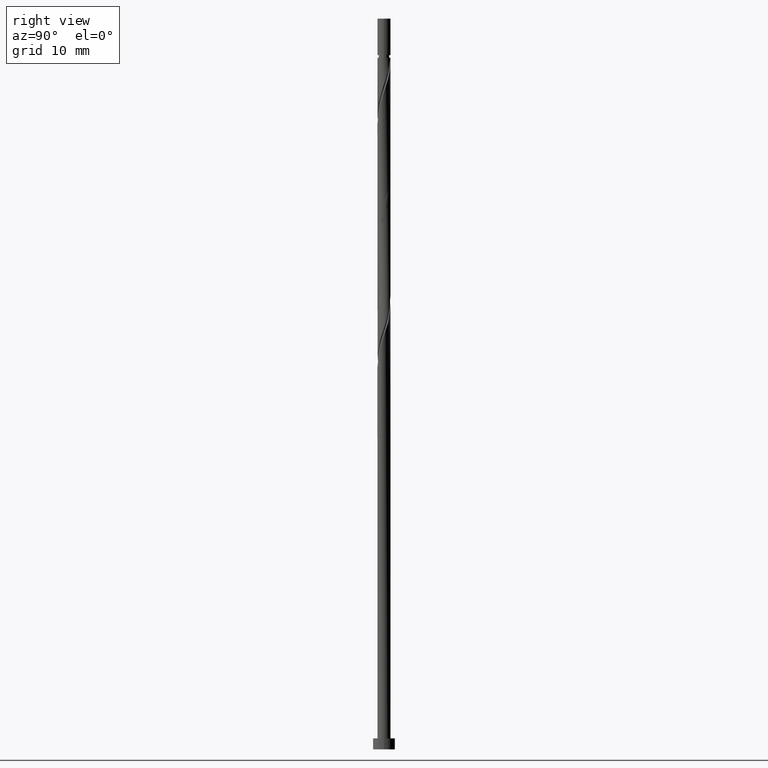
[diagram: clean part render]
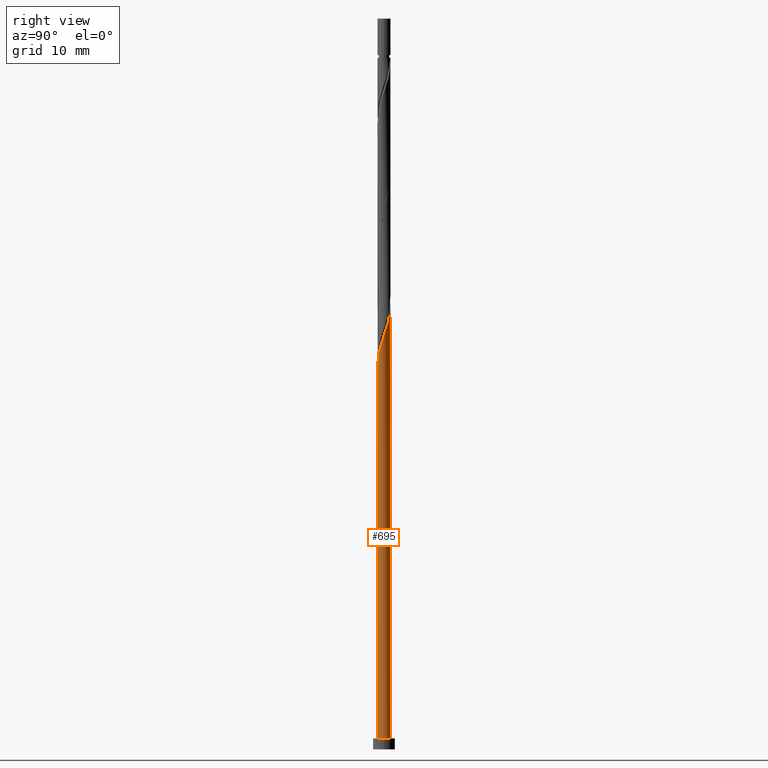
[diagram: same view with one face highlighted and labeled with its STEP entity id]
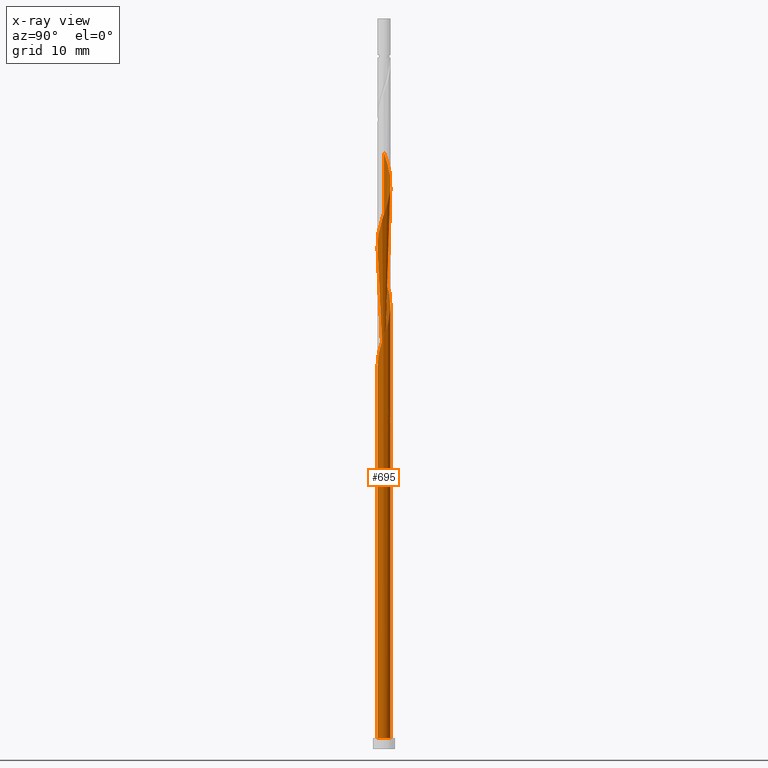
[diagram: x-ray of the same camera — body ghosted, the highlighted face saturated]
A machine part, right view. The second image highlights one B-rep face of the part: STEP entity #695.
The next image is the same camera in x-ray: the body ghosted, the highlighted face saturated — about 0% of this face is hidden behind the body in this view.
In plain terms, the highlighted cylindrical surface (bore or boss wall) has radius 0.9 mm, axis along (-0, -0, -1).
Its self-contained STEP definition (entity closure, byte-faithful):
#1 = CARTESIAN_POINT ( 'NONE',  ( -0.4699585898495194369, 0.7675538572808121573, 62.23155601939069470 ) ) ;
#34 = CARTESIAN_POINT ( 'NONE',  ( -0.9000000000000012434, 8.720621721749205951E-16, 48.27477520514266729 ) ) ;
#44 = CARTESIAN_POINT ( 'NONE',  ( 0.6052990440349810264, -0.6846874780746388112, 54.36118564902031380 ) ) ;
#45 = ORIENTED_EDGE ( 'NONE', *, *, #1302, .T. ) ;
#53 = LINE ( 'NONE', #1092, #716 ) ;
#72 = CARTESIAN_POINT ( 'NONE',  ( -0.6742855367982802939, -0.5961031914565271261, 50.19451898235366372 ) ) ;
#73 = VERTEX_POINT ( 'NONE', #767 ) ;
#81 = CARTESIAN_POINT ( 'NONE',  ( 0.1790977386791917370, 0.8820000000000014495, 44.63896342679809948 ) ) ;
#82 = EDGE_CURVE ( 'NONE', #1060, #73, #53, .T. ) ;
#84 = CARTESIAN_POINT ( 'NONE',  ( -0.9000000000000010214, -2.838403643909805734E-16, 81.60810853847603141 ) ) ;
#89 = CARTESIAN_POINT ( 'NONE',  ( 0.8533832754774717255, -0.2858968085434743234, 72.41674120457587094 ) ) ;
#93 = CARTESIAN_POINT ( 'NONE',  ( -0.2903072276482472902, -0.8665480880580486156, 68.25007453790921375 ) ) ;
#97 = CARTESIAN_POINT ( 'NONE',  ( -0.6742855367982802939, -0.5961031914565271261, 66.86118564902032801 ) ) ;
#102 = CARTESIAN_POINT ( 'NONE',  ( 0.2903072276482477898, 0.8665480880580483936, 76.58340787124255655 ) ) ;
#130 = CARTESIAN_POINT ( 'NONE',  ( -0.1790977386791912929, 0.8820000000000012275, 44.63896342679811369 ) ) ;
#161 = CARTESIAN_POINT ( 'NONE',  ( 0.000000000000000000, 0.000000000000000000, 100.0000000000000000 ) ) ;
#174 = CARTESIAN_POINT ( 'NONE',  ( -0.8956062716832288162, 0.1818606099834100820, 48.80563009346477088 ) ) ;
#187 = CARTESIAN_POINT ( 'NONE',  ( 0.4699585898495194369, -0.7675538572808121573, 70.56488935272405172 ) ) ;
#193 = CARTESIAN_POINT ( 'NONE',  ( 0.9037945965221287903, -0.1354223121914317485, 72.87970416753884706 ) ) ;
#196 = CARTESIAN_POINT ( 'NONE',  ( 0.9037945965221287903, -0.1354223121914317485, 56.21303750087217566 ) ) ;
#204 = CARTESIAN_POINT ( 'NONE',  ( 0.4297418442531592553, 0.7907730061768012408, 76.12044490827958043 ) ) ;
#209 = CARTESIAN_POINT ( 'NONE',  ( -0.7041354992338979546, 0.5605293914850775217, 79.82414861198327571 ) ) ;
#212 = CARTESIAN_POINT ( 'NONE',  ( 0.000000000000000000, 0.000000000000000000, 1.500000000000000000 ) ) ;
#213 = ORIENTED_EDGE ( 'NONE', *, *, #1009, .T. ) ;
#214 = CARTESIAN_POINT ( 'NONE',  ( -0.9000000000000000222, 0.000000000000000000, 100.0000000000000000 ) ) ;
#246 =( BOUNDED_CURVE ( )  B_SPLINE_CURVE ( 2, ( #130, #552, #870, #342, #758, #1184, #1204, #260, #34 ),
 .UNSPECIFIED., .F., .T. ) 
 B_SPLINE_CURVE_WITH_KNOTS ( ( 3, 2, 2, 2, 3 ),
 ( 0.000000000000000000, 0.01388888888888883955, 0.02777777777777779011, 0.04166666666666662966, 0.05452480538552909040 ),
 .UNSPECIFIED. ) 
 CURVE ( )  GEOMETRIC_REPRESENTATION_ITEM ( )  RATIONAL_B_SPLINE_CURVE ( ( 0.9090909090909128354, 0.8952797754656471874, 0.9090909090909128354, 0.8952797754656471874, 0.9090909090909128354, 0.8952797754656471874, 0.9090909090909128354, 0.8963047551055872697, 0.9071930855141251415 ) ) 
 REPRESENTATION_ITEM ( '' )  );
#249 = DIRECTION ( 'NONE',  ( 0.000000000000000000, 0.000000000000000000, 1.000000000000000000 ) ) ;
#258 = CARTESIAN_POINT ( 'NONE',  ( -0.6742855367982805159, 0.5961031914565275702, 47.41674120457588515 ) ) ;
#260 = CARTESIAN_POINT ( 'NONE',  ( -0.9000000000000015765, 0.1467489346384113491, 47.84485569277705963 ) ) ;
#266 = CARTESIAN_POINT ( 'NONE',  ( -0.1333649429769610817, 0.8900639257855329500, 45.56488935272403751 ) ) ;
#276 = CARTESIAN_POINT ( 'NONE',  ( -0.7793946127384899780, -0.4772084586175001086, 49.73155601939070181 ) ) ;
#280 = FACE_OUTER_BOUND ( 'NONE', #1056, .T. ) ;
#292 = CARTESIAN_POINT ( 'NONE',  ( 0.8956062716832284831, 0.1818606099834098599, 57.13896342679811369 ) ) ;
#298 = CARTESIAN_POINT ( 'NONE',  ( 0.9000000000000000222, 0.000000000000000000, 1.500000000000000000 ) ) ;
#302 = CARTESIAN_POINT ( 'NONE',  ( 0.7041354992338979546, -0.5605293914850775217, 54.82414861198327571 ) ) ;
#306 = CARTESIAN_POINT ( 'NONE',  ( 0.2903072276482477898, 0.8665480880580483936, 59.91674120457589225 ) ) ;
#312 = CARTESIAN_POINT ( 'NONE',  ( -0.6052990440349811374, 0.6846874780746385891, 79.36118564902034223 ) ) ;
#317 = EDGE_CURVE ( 'NONE', #993, #443, #246, .T. ) ;
#325 = CARTESIAN_POINT ( 'NONE',  ( -0.1790977386791912929, 0.8820000000000012275, 44.63896342679809948 ) ) ;
#336 =( BOUNDED_CURVE ( )  B_SPLINE_CURVE ( 2, ( #779, #1211, #1334, #174, #919, #769, #258, #682, #375, #1011, #266, #913, #81 ),
 .UNSPECIFIED., .F., .T. ) 
 B_SPLINE_CURVE_WITH_KNOTS ( ( 3, 2, 2, 2, 2, 2, 3 ),
 ( 0.9295248053855288406, 0.9305555555555555802, 0.9444444444444444198, 0.9583333333333333703, 0.9722222222222222099, 0.9861111111111111605, 1.000000000000000000 ),
 .UNSPECIFIED. ) 
 CURVE ( )  GEOMETRIC_REPRESENTATION_ITEM ( )  RATIONAL_B_SPLINE_CURVE ( ( 0.9071930855141256966, 0.9080659294509735302, 0.9090909090909138346, 0.8952797754656482976, 0.9090909090909138346, 0.8952797754656482976, 0.9090909090909138346, 0.8952797754656482976, 0.9090909090909138346, 0.8952797754656482976, 0.9090909090909138346, 0.8952797754656482976, 0.9090909090909138346 ) ) 
 REPRESENTATION_ITEM ( '' )  );
#337 = ORIENTED_EDGE ( 'NONE', *, *, #82, .F. ) ;
#342 = CARTESIAN_POINT ( 'NONE',  ( -0.6052990440349811374, 0.6846874780746385891, 46.02785231568699231 ) ) ;
#344 = CARTESIAN_POINT ( 'NONE',  ( 0.1790977386791913761, -0.8820000000000012275, 52.97229676013144228 ) ) ;
#372 = CARTESIAN_POINT ( 'NONE',  ( -0.9000000000000010214, -0.01161150689881867634, 48.30879257907503899 ) ) ;
#375 = CARTESIAN_POINT ( 'NONE',  ( -0.4297418442531589777, 0.7907730061768017960, 46.49081527864996133 ) ) ;
#381 = ORIENTED_EDGE ( 'NONE', *, *, #868, .F. ) ;
#391 = EDGE_CURVE ( 'NONE', #887, #1311, #1133, .T. ) ;
#392 = CARTESIAN_POINT ( 'NONE',  ( -0.8956062716832284831, -0.1818606099834099432, 65.47229676013145649 ) ) ;
#396 = CARTESIAN_POINT ( 'NONE',  ( -0.1790977386791912651, 0.8820000000000012275, 77.97229676013144228 ) ) ;
#401 = CARTESIAN_POINT ( 'NONE',  ( 0.8997004341026783036, 0.02321914889598944085, 73.34266713050180897 ) ) ;
#405 = CARTESIAN_POINT ( 'NONE',  ( -0.3346181356640578475, 0.8504202364869859476, 61.76859305642774700 ) ) ;
#411 = CARTESIAN_POINT ( 'NONE',  ( 0.4297418442531592553, 0.7907730061768012408, 59.45377824161291613 ) ) ;
#419 = AXIS2_PLACEMENT_3D ( 'NONE', #161, #1106, #589 ) ;
#420 = CARTESIAN_POINT ( 'NONE',  ( 0.000000000000000000, 0.000000000000000000, 44.63896342679813500 ) ) ;
#443 = VERTEX_POINT ( 'NONE', #507 ) ;
#451 = CARTESIAN_POINT ( 'NONE',  ( -0.8997004341026783036, -0.02321914889598936105, 48.34266713050180897 ) ) ;
#455 = CARTESIAN_POINT ( 'NONE',  ( 0.000000000000000000, 0.000000000000000000, 1.500000000000000000 ) ) ;
#463 = ORIENTED_EDGE ( 'NONE', *, *, #317, .F. ) ;
#490 = CARTESIAN_POINT ( 'NONE',  ( 0.02357734169432485968, -0.9135797635130168404, 52.50933379716850169 ) ) ;
#499 = CARTESIAN_POINT ( 'NONE',  ( -0.6052990440349811374, 0.6846874780746385891, 62.69451898235364951 ) ) ;
#504 = CARTESIAN_POINT ( 'NONE',  ( -0.8533832754774717255, 0.2858968085434738238, 64.08340787124254234 ) ) ;
#507 = CARTESIAN_POINT ( 'NONE',  ( -0.9000000000000012434, 8.720621721749205951E-16, 48.27477520514266729 ) ) ;
#516 = CARTESIAN_POINT ( 'NONE',  ( 0.8533832754774717255, -0.2858968085434743234, 55.75007453790922085 ) ) ;
#521 = CARTESIAN_POINT ( 'NONE',  ( 0.1333649429769616646, 0.8900639257855326170, 77.04637083420553267 ) ) ;
#534 = DIRECTION ( 'NONE',  ( 1.000000000000000000, 0.000000000000000000, 0.000000000000000000 ) ) ;
#552 = CARTESIAN_POINT ( 'NONE',  ( -0.3346181356640578475, 0.8504202364869859476, 45.10192638976106139 ) ) ;
#553 = VERTEX_POINT ( 'NONE', #1308 ) ;
#588 = DIRECTION ( 'NONE',  ( -0.000000000000000000, -0.000000000000000000, -1.000000000000000000 ) ) ;
#589 = DIRECTION ( 'NONE',  ( -1.000000000000000000, 0.000000000000000000, 0.000000000000000000 ) ) ;
#597 = CYLINDRICAL_SURFACE ( 'NONE', #419, 0.9000000000000000222 ) ;
#609 = CARTESIAN_POINT ( 'NONE',  ( -0.1333649429769611927, -0.8900639257855327280, 68.71303750087216144 ) ) ;
#613 = CARTESIAN_POINT ( 'NONE',  ( -0.8029719544328148828, 0.4363713048955168428, 80.28711157494626605 ) ) ;
#618 = CARTESIAN_POINT ( 'NONE',  ( 0.8997004341026783036, 0.02321914889598944085, 56.67600046383514467 ) ) ;
#623 = EDGE_CURVE ( 'NONE', #1311, #887, #862, .T. ) ;
#625 = CARTESIAN_POINT ( 'NONE',  ( -0.02357734169432512683, 0.9135797635130168404, 60.84266713050182318 ) ) ;
#651 = ORIENTED_EDGE ( 'NONE', *, *, #391, .T. ) ;
#654 = DIRECTION ( 'NONE',  ( 0.000000000000000000, -3.854941057726241844E-14, -1.000000000000000000 ) ) ;
#661 = DIRECTION ( 'NONE',  ( -0.000000000000000000, -0.000000000000000000, -1.000000000000000000 ) ) ;
#678 = CARTESIAN_POINT ( 'NONE',  ( -0.4297418442531591998, -0.7907730061768013519, 51.12044490827956622 ) ) ;
#682 = CARTESIAN_POINT ( 'NONE',  ( -0.5691764608580708318, 0.7149979242955548653, 46.95377824161292324 ) ) ;
#695 = ADVANCED_FACE ( 'NONE', ( #280 ), #597, .T. ) ;
#697 = CARTESIAN_POINT ( 'NONE',  ( -0.5691764608580706097, -0.7149979242955547543, 50.65748194531663984 ) ) ;
#709 = EDGE_CURVE ( 'NONE', #73, #553, #336, .T. ) ;
#711 = CARTESIAN_POINT ( 'NONE',  ( -0.8375004422108588420, -0.3295345343004549288, 65.93525972309440419 ) ) ;
#716 = VECTOR ( 'NONE', #588, 1000.000000000000000 ) ;
#717 = CARTESIAN_POINT ( 'NONE',  ( 0.02357734169432485968, -0.9135797635130168404, 69.17600046383513757 ) ) ;
#725 = CARTESIAN_POINT ( 'NONE',  ( 0.6052990440349810264, -0.6846874780746388112, 71.02785231568701363 ) ) ;
#730 = CARTESIAN_POINT ( 'NONE',  ( -0.1790977386791912651, 0.8820000000000012275, 61.30563009346477088 ) ) ;
#747 = AXIS2_PLACEMENT_3D ( 'NONE', #455, #249, #534 ) ;
#749 = CARTESIAN_POINT ( 'NONE',  ( -0.9000000000000000222, 0.000000000000000000, 1.500000000000000000 ) ) ;
#756 =( BOUNDED_CURVE ( )  B_SPLINE_CURVE ( 2, ( #1325, #372, #451, #791, #1222, #276, #72, #697, #678, #1111, #1007, #490, #344, #979, #1082, #44, #302, #940, #516, #196, #618, #292, #928, #1033, #1152, #1130, #411, #306, #1029, #625, #730, #405, #1, #499, #1354, #1256, #504, #935, #1361, #392, #711, #1140, #97, #1024, #920, #93, #609, #717, #814, #835, #187, #725, #1344, #829, #89, #193, #401, #1262, #1146, #1042, #1240, #925, #204, #102, #521, #1349, #396, #819, #825, #312, #209, #613, #1020, #1246, #84 ),
 .UNSPECIFIED., .F., .T. ) 
 B_SPLINE_CURVE_WITH_KNOTS ( ( 3, 2, 2, 2, 2, 2, 2, 2, 2, 2, 2, 2, 2, 2, 2, 2, 2, 2, 2, 2, 2, 2, 2, 2, 2, 2, 2, 2, 2, 2, 2, 2, 2, 2, 2, 2, 2, 3 ),
 ( 0.05452480538552909040, 0.05555555555555558023, 0.06944444444444441977, 0.08333333333333337034, 0.09722222222222220989, 0.1111111111111111605, 0.1250000000000000000, 0.1388888888888888395, 0.1527777777777777901, 0.1666666666666666297, 0.1805555555555555802, 0.1944444444444444198, 0.2083333333333333703, 0.2222222222222222099, 0.2361111111111111605, 0.2500000000000000000, 0.2638888888888888395, 0.2777777777777777901, 0.2916666666666666297, 0.3055555555555555802, 0.3194444444444444198, 0.3333333333333333703, 0.3472222222222222099, 0.3611111111111111605, 0.3750000000000000000, 0.3888888888888888395, 0.4027777777777777901, 0.4166666666666666297, 0.4305555555555555802, 0.4444444444444444198, 0.4583333333333333703, 0.4722222222222222099, 0.4861111111111111605, 0.5000000000000000000, 0.5138888888888888395, 0.5277777777777777901, 0.5416666666666667407, 0.5545248053855289516 ),
 .UNSPECIFIED. ) 
 CURVE ( )  GEOMETRIC_REPRESENTATION_ITEM ( )  RATIONAL_B_SPLINE_CURVE ( ( 0.9071930855141251415, 0.9080659294509727530, 0.9090909090909128354, 0.8952797754656471874, 0.9090909090909128354, 0.8952797754656471874, 0.9090909090909128354, 0.8952797754656471874, 0.9090909090909128354, 0.8952797754656471874, 0.9090909090909128354, 0.8952797754656471874, 0.9090909090909128354, 0.8952797754656471874, 0.9090909090909128354, 0.8952797754656471874, 0.9090909090909128354, 0.8952797754656471874, 0.9090909090909128354, 0.8952797754656471874, 0.9090909090909128354, 0.8952797754656471874, 0.9090909090909128354, 0.8952797754656471874, 0.9090909090909128354, 0.8952797754656471874, 0.9090909090909128354, 0.8952797754656471874, 0.9090909090909128354, 0.8952797754656471874, 0.9090909090909128354, 0.8952797754656471874, 0.9090909090909128354, 0.8952797754656471874, 0.9090909090909128354, 0.8952797754656471874, 0.9090909090909128354, 0.8952797754656471874, 0.9090909090909128354, 0.8952797754656471874, 0.9090909090909128354, 0.8952797754656471874, 0.9090909090909128354, 0.8952797754656471874, 0.9090909090909128354, 0.8952797754656471874, 0.9090909090909128354, 0.8952797754656471874, 0.9090909090909128354, 0.8952797754656471874, 0.9090909090909128354, 0.8952797754656471874, 0.9090909090909128354, 0.8952797754656471874, 0.9090909090909128354, 0.8952797754656471874, 0.9090909090909128354, 0.8952797754656471874, 0.9090909090909128354, 0.8952797754656471874, 0.9090909090909128354, 0.8952797754656471874, 0.9090909090909128354, 0.8952797754656471874, 0.9090909090909128354, 0.8952797754656471874, 0.9090909090909128354, 0.8952797754656471874, 0.9090909090909128354, 0.8952797754656471874, 0.9090909090909128354, 0.8952797754656471874, 0.9090909090909128354, 0.8963047551055873807, 0.9071930855141249195 ) ) 
 REPRESENTATION_ITEM ( '' )  );
#758 = CARTESIAN_POINT ( 'NONE',  ( -0.7041354992338979546, 0.5605293914850775217, 46.49081527864995422 ) ) ;
#767 = CARTESIAN_POINT ( 'NONE',  ( -0.9000000000000013545, -7.898978561670044057E-16, 49.33648498178687447 ) ) ;
#769 = CARTESIAN_POINT ( 'NONE',  ( -0.7793946127384899780, 0.4772084586175002752, 47.87970416753884706 ) ) ;
#779 = CARTESIAN_POINT ( 'NONE',  ( -0.9000000000000013545, -7.898978561670044057E-16, 49.33648498178687447 ) ) ;
#791 = CARTESIAN_POINT ( 'NONE',  ( -0.8956062716832284831, -0.1818606099834099432, 48.80563009346477088 ) ) ;
#814 = CARTESIAN_POINT ( 'NONE',  ( 0.1790977386791913761, -0.8820000000000012275, 69.63896342679812790 ) ) ;
#819 = CARTESIAN_POINT ( 'NONE',  ( -0.3346181356640578475, 0.8504202364869859476, 78.43525972309443262 ) ) ;
#825 = CARTESIAN_POINT ( 'NONE',  ( -0.4699585898495194369, 0.7675538572808121573, 78.89822268605738032 ) ) ;
#829 = CARTESIAN_POINT ( 'NONE',  ( 0.8029719544328148828, -0.4363713048955170648, 71.95377824161290903 ) ) ;
#835 = CARTESIAN_POINT ( 'NONE',  ( 0.3346181356640575699, -0.8504202364869859476, 70.10192638976104718 ) ) ;
#842 = VECTOR ( 'NONE', #661, 1000.000000000000000 ) ;
#845 = CARTESIAN_POINT ( 'NONE',  ( -0.9000000000000010214, -2.838403643909805734E-16, 81.60810853847601720 ) ) ;
#860 = ORIENTED_EDGE ( 'NONE', *, *, #623, .T. ) ;
#862 = CIRCLE ( 'NONE', #747, 0.9000000000000000222 ) ;
#868 = EDGE_CURVE ( 'NONE', #443, #1060, #756, .T. ) ;
#870 = CARTESIAN_POINT ( 'NONE',  ( -0.4699585898495194369, 0.7675538572808121573, 45.56488935272403040 ) ) ;
#887 = VERTEX_POINT ( 'NONE', #298 ) ;
#913 = CARTESIAN_POINT ( 'NONE',  ( 0.02357734169432514765, 0.9135797635130168404, 45.10192638976105428 ) ) ;
#919 = CARTESIAN_POINT ( 'NONE',  ( -0.8375004422108591751, 0.3295345343004550953, 48.34266713050180897 ) ) ;
#920 = CARTESIAN_POINT ( 'NONE',  ( -0.4297418442531591998, -0.7907730061768013519, 67.78711157494623762 ) ) ;
#925 = CARTESIAN_POINT ( 'NONE',  ( 0.5691764608580706097, 0.7149979242955546432, 75.65748194531664694 ) ) ;
#928 = CARTESIAN_POINT ( 'NONE',  ( 0.8375004422108590640, 0.3295345343004545957, 57.60192638976106849 ) ) ;
#935 = CARTESIAN_POINT ( 'NONE',  ( -0.9037945965221287903, 0.1354223121914312766, 64.54637083420550425 ) ) ;
#940 = CARTESIAN_POINT ( 'NONE',  ( 0.8029719544328148828, -0.4363713048955170648, 55.28711157494625894 ) ) ;
#956 = DIRECTION ( 'NONE',  ( 0.000000000000000000, 1.000000000000000000, -3.854941057726238058E-14 ) ) ;
#961 = ORIENTED_EDGE ( 'NONE', *, *, #709, .F. ) ;
#975 = ORIENTED_EDGE ( 'NONE', *, *, #1302, .F. ) ;
#979 = CARTESIAN_POINT ( 'NONE',  ( 0.3346181356640575699, -0.8504202364869859476, 53.43525972309439709 ) ) ;
#993 = VERTEX_POINT ( 'NONE', #325 ) ;
#1007 = CARTESIAN_POINT ( 'NONE',  ( -0.1333649429769611927, -0.8900639257855327280, 52.04637083420551136 ) ) ;
#1009 = EDGE_CURVE ( 'NONE', #993, #553, #1061, .T. ) ;
#1011 = CARTESIAN_POINT ( 'NONE',  ( -0.2903072276482472902, 0.8665480880580487266, 46.02785231568699231 ) ) ;
#1020 = CARTESIAN_POINT ( 'NONE',  ( -0.8533832754774717255, 0.2858968085434738238, 80.75007453790921375 ) ) ;
#1024 = CARTESIAN_POINT ( 'NONE',  ( -0.5691764608580706097, -0.7149979242955547543, 67.32414861198328992 ) ) ;
#1029 = CARTESIAN_POINT ( 'NONE',  ( 0.1333649429769616646, 0.8900639257855326170, 60.37970416753883995 ) ) ;
#1033 = CARTESIAN_POINT ( 'NONE',  ( 0.7793946127384902001, 0.4772084586174996090, 58.06488935272403040 ) ) ;
#1039 = DIRECTION ( 'NONE',  ( 0.000000000000000000, 0.000000000000000000, 1.000000000000000000 ) ) ;
#1042 = CARTESIAN_POINT ( 'NONE',  ( 0.7793946127384902001, 0.4772084586174996090, 74.73155601939069470 ) ) ;
#1056 = EDGE_LOOP ( 'NONE', ( #337, #381, #45, #860, #651, #975, #463, #213, #961 ) ) ;
#1060 = VERTEX_POINT ( 'NONE', #845 ) ;
#1061 = CIRCLE ( 'NONE', #1265, 0.9000000000000000222 ) ;
#1082 = CARTESIAN_POINT ( 'NONE',  ( 0.4699585898495194369, -0.7675538572808121573, 53.89822268605736610 ) ) ;
#1092 = CARTESIAN_POINT ( 'NONE',  ( -0.9000000000000000222, 0.000000000000000000, 100.0000000000000000 ) ) ;
#1106 = DIRECTION ( 'NONE',  ( -0.000000000000000000, -0.000000000000000000, -1.000000000000000000 ) ) ;
#1111 = CARTESIAN_POINT ( 'NONE',  ( -0.2903072276482472902, -0.8665480880580486156, 51.58340787124255655 ) ) ;
#1130 = CARTESIAN_POINT ( 'NONE',  ( 0.5691764608580706097, 0.7149979242955546432, 58.99081527864996843 ) ) ;
#1133 = CIRCLE ( 'NONE', #1315, 0.9000000000000000222 ) ;
#1140 = CARTESIAN_POINT ( 'NONE',  ( -0.7793946127384899780, -0.4772084586175001086, 66.39822268605736610 ) ) ;
#1146 = CARTESIAN_POINT ( 'NONE',  ( 0.8375004422108590640, 0.3295345343004545957, 74.26859305642771858 ) ) ;
#1149 = DIRECTION ( 'NONE',  ( 1.000000000000000000, 0.000000000000000000, 0.000000000000000000 ) ) ;
#1152 = CARTESIAN_POINT ( 'NONE',  ( 0.6742855367982801829, 0.5961031914565273482, 58.52785231568698521 ) ) ;
#1158 = LINE ( 'NONE', #214, #842 ) ;
#1184 = CARTESIAN_POINT ( 'NONE',  ( -0.8029719544328148828, 0.4363713048955168428, 46.95377824161293034 ) ) ;
#1204 = CARTESIAN_POINT ( 'NONE',  ( -0.8533832754774717255, 0.2858968085434738238, 47.41674120457589225 ) ) ;
#1211 = CARTESIAN_POINT ( 'NONE',  ( -0.9000000000000013545, 0.01161150689881594068, 49.30246760785450988 ) ) ;
#1222 = CARTESIAN_POINT ( 'NONE',  ( -0.8375004422108588420, -0.3295345343004549288, 49.26859305642773279 ) ) ;
#1240 = CARTESIAN_POINT ( 'NONE',  ( 0.6742855367982801829, 0.5961031914565273482, 75.19451898235361398 ) ) ;
#1246 = CARTESIAN_POINT ( 'NONE',  ( -0.9000000000000009104, 0.1467489346384129867, 81.17818902611043086 ) ) ;
#1256 = CARTESIAN_POINT ( 'NONE',  ( -0.8029719544328148828, 0.4363713048955168428, 63.62044490827958754 ) ) ;
#1262 = CARTESIAN_POINT ( 'NONE',  ( 0.8956062716832284831, 0.1818606099834098599, 73.80563009346477088 ) ) ;
#1265 = AXIS2_PLACEMENT_3D ( 'NONE', #420, #654, #956 ) ;
#1302 = EDGE_CURVE ( 'NONE', #443, #1311, #1158, .T. ) ;
#1308 = CARTESIAN_POINT ( 'NONE',  ( 0.1790977386791917370, 0.8820000000000014495, 44.63896342679809948 ) ) ;
#1311 = VERTEX_POINT ( 'NONE', #749 ) ;
#1315 = AXIS2_PLACEMENT_3D ( 'NONE', #212, #1039, #1149 ) ;
#1325 = CARTESIAN_POINT ( 'NONE',  ( -0.9000000000000012434, 8.720621721749205951E-16, 48.27477520514266729 ) ) ;
#1334 = CARTESIAN_POINT ( 'NONE',  ( -0.8997004341026786367, 0.02321914889598945125, 49.26859305642774700 ) ) ;
#1344 = CARTESIAN_POINT ( 'NONE',  ( 0.7041354992338979546, -0.5605293914850775217, 71.49081527864994712 ) ) ;
#1349 = CARTESIAN_POINT ( 'NONE',  ( -0.02357734169432512683, 0.9135797635130168404, 77.50933379716848037 ) ) ;
#1354 = CARTESIAN_POINT ( 'NONE',  ( -0.7041354992338979546, 0.5605293914850775217, 63.15748194531661852 ) ) ;
#1361 = CARTESIAN_POINT ( 'NONE',  ( -0.8997004341026783036, -0.02321914889598936105, 65.00933379716846616 ) ) ;